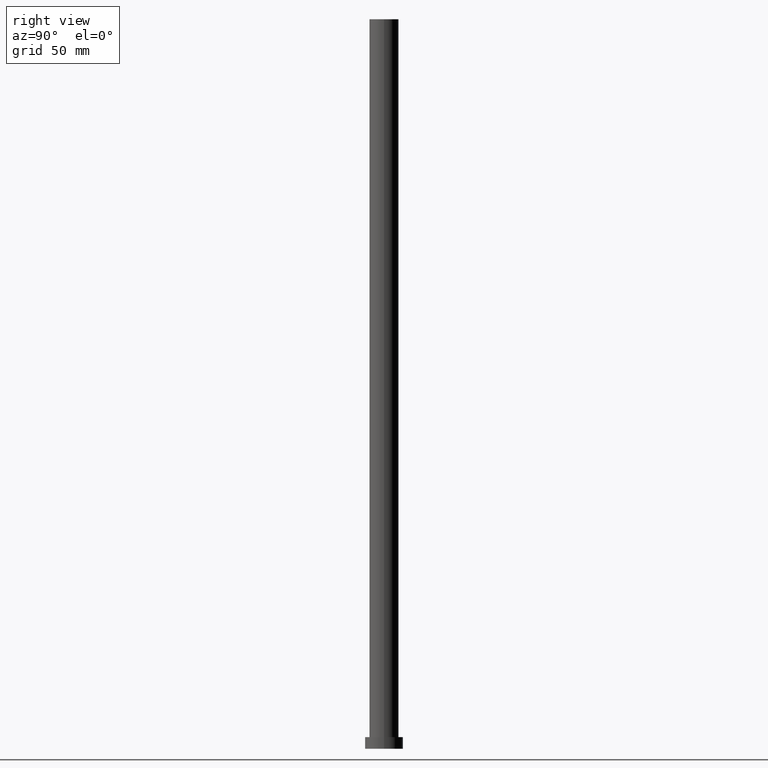
[diagram: clean part render]
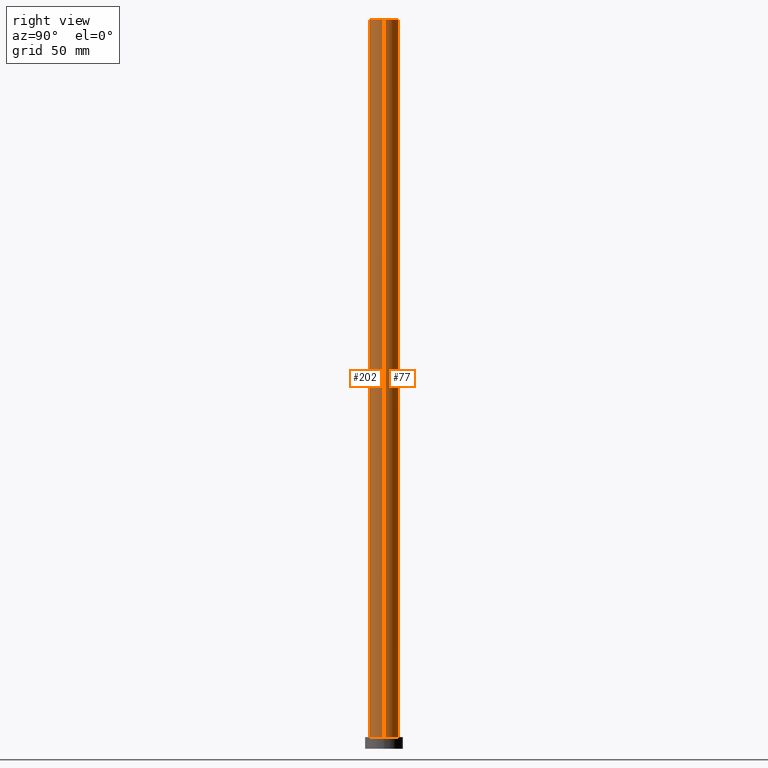
[diagram: same view with one multi-face feature highlighted, each face labeled with its STEP entity id]
A machine part, right view. The highlighted faces form ONE feature: a constant-radius fillet chain: 2 tangent blend faces with common blend radius 10 mm. The faces share edges in the B-rep.
Their STEP definitions:
[1] entity #202 (Cylinder):
#10 = DIRECTION ( 'NONE',  ( -0.000000000000000000, -0.000000000000000000, -1.000000000000000000 ) ) ;
#12 = DIRECTION ( 'NONE',  ( 0.000000000000000000, 0.000000000000000000, 1.000000000000000000 ) ) ;
#14 = VERTEX_POINT ( 'NONE', #84 ) ;
#27 = CARTESIAN_POINT ( 'NONE',  ( 0.000000000000000000, 0.000000000000000000, 500.0000000000000000 ) ) ;
#31 = DIRECTION ( 'NONE',  ( 1.000000000000000000, 0.000000000000000000, 0.000000000000000000 ) ) ;
#43 = CIRCLE ( 'NONE', #158, 10.00000000000000178 ) ;
#47 = CARTESIAN_POINT ( 'NONE',  ( 0.000000000000000000, 0.000000000000000000, 500.0000000000000000 ) ) ;
#48 = FACE_OUTER_BOUND ( 'NONE', #108, .T. ) ;
#50 = CARTESIAN_POINT ( 'NONE',  ( -10.00000000000000178, 0.000000000000000000, 8.000000000000000000 ) ) ;
#52 = DIRECTION ( 'NONE',  ( -0.000000000000000000, -0.000000000000000000, -1.000000000000000000 ) ) ;
#54 = DIRECTION ( 'NONE',  ( -0.000000000000000000, -0.000000000000000000, -1.000000000000000000 ) ) ;
#66 = CARTESIAN_POINT ( 'NONE',  ( 10.00000000000000178, 1.224646799147353454E-15, 8.000000000000000000 ) ) ;
#68 = CYLINDRICAL_SURFACE ( 'NONE', #179, 10.00000000000000178 ) ;
#82 = VERTEX_POINT ( 'NONE', #66 ) ;
#84 = CARTESIAN_POINT ( 'NONE',  ( -10.00000000000000178, 0.000000000000000000, 500.0000000000000000 ) ) ;
#88 = VECTOR ( 'NONE', #54, 1000.000000000000000 ) ;
#93 = DIRECTION ( 'NONE',  ( 1.000000000000000000, 0.000000000000000000, 0.000000000000000000 ) ) ;
#94 = CIRCLE ( 'NONE', #166, 10.00000000000000178 ) ;
#108 = EDGE_LOOP ( 'NONE', ( #152, #217, #163, #147 ) ) ;
#114 = EDGE_CURVE ( 'NONE', #216, #82, #94, .T. ) ;
#124 = EDGE_CURVE ( 'NONE', #14, #216, #233, .T. ) ;
#147 = ORIENTED_EDGE ( 'NONE', *, *, #114, .T. ) ;
#152 = ORIENTED_EDGE ( 'NONE', *, *, #235, .F. ) ;
#154 = CARTESIAN_POINT ( 'NONE',  ( 10.00000000000000178, 1.224646799147353454E-15, 500.0000000000000000 ) ) ;
#158 = AXIS2_PLACEMENT_3D ( 'NONE', #47, #12, #93 ) ;
#159 = DIRECTION ( 'NONE',  ( 0.000000000000000000, 0.000000000000000000, 1.000000000000000000 ) ) ;
#162 = VERTEX_POINT ( 'NONE', #154 ) ;
#163 = ORIENTED_EDGE ( 'NONE', *, *, #124, .T. ) ;
#164 = EDGE_CURVE ( 'NONE', #14, #162, #43, .T. ) ;
#166 = AXIS2_PLACEMENT_3D ( 'NONE', #189, #159, #31 ) ;
#171 = DIRECTION ( 'NONE',  ( -1.000000000000000000, 0.000000000000000000, 0.000000000000000000 ) ) ;
#173 = LINE ( 'NONE', #247, #224 ) ;
#179 = AXIS2_PLACEMENT_3D ( 'NONE', #27, #10, #171 ) ;
#189 = CARTESIAN_POINT ( 'NONE',  ( 0.000000000000000000, 0.000000000000000000, 8.000000000000000000 ) ) ;
#202 = ADVANCED_FACE ( 'NONE', ( #48 ), #68, .T. ) ;
#209 = CARTESIAN_POINT ( 'NONE',  ( -10.00000000000000178, 0.000000000000000000, 500.0000000000000000 ) ) ;
#216 = VERTEX_POINT ( 'NONE', #50 ) ;
#217 = ORIENTED_EDGE ( 'NONE', *, *, #164, .F. ) ;
#224 = VECTOR ( 'NONE', #52, 1000.000000000000000 ) ;
#233 = LINE ( 'NONE', #209, #88 ) ;
#235 = EDGE_CURVE ( 'NONE', #162, #82, #173, .T. ) ;
#247 = CARTESIAN_POINT ( 'NONE',  ( 10.00000000000000178, 1.224646799147353454E-15, 500.0000000000000000 ) ) ;
[2] entity #77 (Cylinder):
#14 = VERTEX_POINT ( 'NONE', #84 ) ;
#16 = DIRECTION ( 'NONE',  ( -0.000000000000000000, -0.000000000000000000, -1.000000000000000000 ) ) ;
#50 = CARTESIAN_POINT ( 'NONE',  ( -10.00000000000000178, 0.000000000000000000, 8.000000000000000000 ) ) ;
#51 = ORIENTED_EDGE ( 'NONE', *, *, #207, .F. ) ;
#52 = DIRECTION ( 'NONE',  ( -0.000000000000000000, -0.000000000000000000, -1.000000000000000000 ) ) ;
#54 = DIRECTION ( 'NONE',  ( -0.000000000000000000, -0.000000000000000000, -1.000000000000000000 ) ) ;
#66 = CARTESIAN_POINT ( 'NONE',  ( 10.00000000000000178, 1.224646799147353454E-15, 8.000000000000000000 ) ) ;
#70 = DIRECTION ( 'NONE',  ( 0.000000000000000000, 0.000000000000000000, 1.000000000000000000 ) ) ;
#71 = EDGE_CURVE ( 'NONE', #82, #216, #128, .T. ) ;
#76 = DIRECTION ( 'NONE',  ( -1.000000000000000000, 0.000000000000000000, 0.000000000000000000 ) ) ;
#77 = ADVANCED_FACE ( 'NONE', ( #227 ), #96, .T. ) ;
#82 = VERTEX_POINT ( 'NONE', #66 ) ;
#84 = CARTESIAN_POINT ( 'NONE',  ( -10.00000000000000178, 0.000000000000000000, 500.0000000000000000 ) ) ;
#88 = VECTOR ( 'NONE', #54, 1000.000000000000000 ) ;
#96 = CYLINDRICAL_SURFACE ( 'NONE', #183, 10.00000000000000178 ) ;
#104 = AXIS2_PLACEMENT_3D ( 'NONE', #231, #70, #228 ) ;
#109 = EDGE_LOOP ( 'NONE', ( #51, #121, #182, #255 ) ) ;
#121 = ORIENTED_EDGE ( 'NONE', *, *, #235, .T. ) ;
#124 = EDGE_CURVE ( 'NONE', #14, #216, #233, .T. ) ;
#128 = CIRCLE ( 'NONE', #177, 10.00000000000000178 ) ;
#139 = CARTESIAN_POINT ( 'NONE',  ( 0.000000000000000000, 0.000000000000000000, 500.0000000000000000 ) ) ;
#151 = CARTESIAN_POINT ( 'NONE',  ( 0.000000000000000000, 0.000000000000000000, 8.000000000000000000 ) ) ;
#154 = CARTESIAN_POINT ( 'NONE',  ( 10.00000000000000178, 1.224646799147353454E-15, 500.0000000000000000 ) ) ;
#162 = VERTEX_POINT ( 'NONE', #154 ) ;
#173 = LINE ( 'NONE', #247, #224 ) ;
#176 = DIRECTION ( 'NONE',  ( 1.000000000000000000, 0.000000000000000000, 0.000000000000000000 ) ) ;
#177 = AXIS2_PLACEMENT_3D ( 'NONE', #151, #195, #176 ) ;
#182 = ORIENTED_EDGE ( 'NONE', *, *, #71, .T. ) ;
#183 = AXIS2_PLACEMENT_3D ( 'NONE', #139, #16, #76 ) ;
#195 = DIRECTION ( 'NONE',  ( 0.000000000000000000, 0.000000000000000000, 1.000000000000000000 ) ) ;
#207 = EDGE_CURVE ( 'NONE', #162, #14, #221, .T. ) ;
#209 = CARTESIAN_POINT ( 'NONE',  ( -10.00000000000000178, 0.000000000000000000, 500.0000000000000000 ) ) ;
#216 = VERTEX_POINT ( 'NONE', #50 ) ;
#221 = CIRCLE ( 'NONE', #104, 10.00000000000000178 ) ;
#224 = VECTOR ( 'NONE', #52, 1000.000000000000000 ) ;
#227 = FACE_OUTER_BOUND ( 'NONE', #109, .T. ) ;
#228 = DIRECTION ( 'NONE',  ( 1.000000000000000000, 0.000000000000000000, 0.000000000000000000 ) ) ;
#231 = CARTESIAN_POINT ( 'NONE',  ( 0.000000000000000000, 0.000000000000000000, 500.0000000000000000 ) ) ;
#233 = LINE ( 'NONE', #209, #88 ) ;
#235 = EDGE_CURVE ( 'NONE', #162, #82, #173, .T. ) ;
#247 = CARTESIAN_POINT ( 'NONE',  ( 10.00000000000000178, 1.224646799147353454E-15, 500.0000000000000000 ) ) ;
#255 = ORIENTED_EDGE ( 'NONE', *, *, #124, .F. ) ;